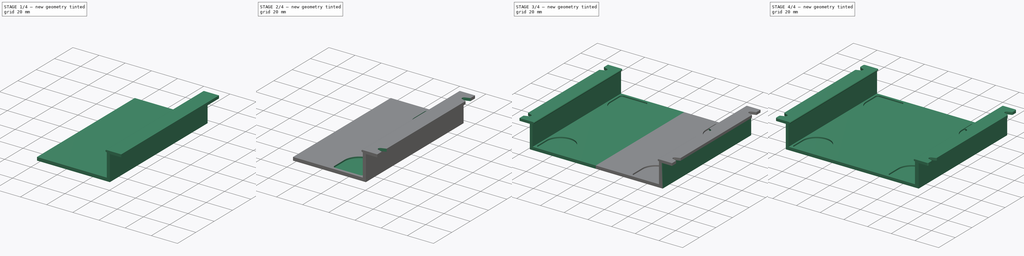
[diagram: build sequence overview — one tinted view per stage of 4, left to right]
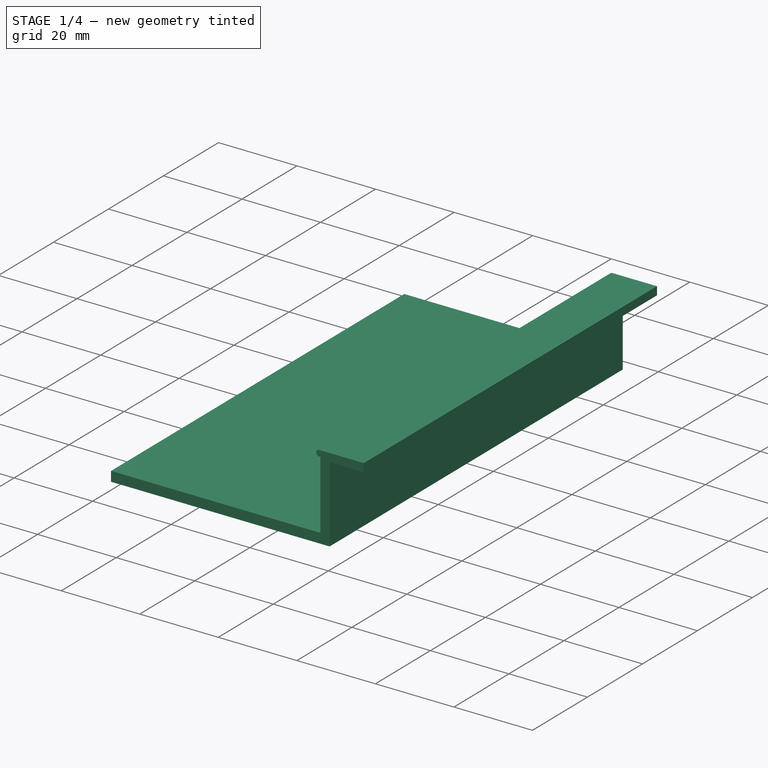
[diagram: stage 1 of 4 — iso view after this stage's code; geometry added in this stage tinted green]
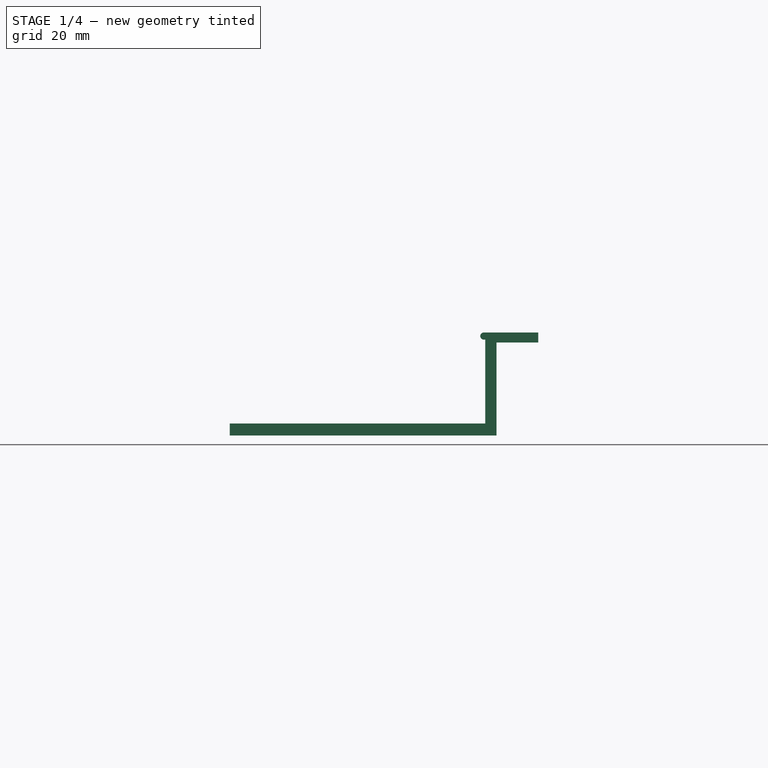
[diagram: stage 1 of 4 — front view after this stage's code; geometry added in this stage tinted green]
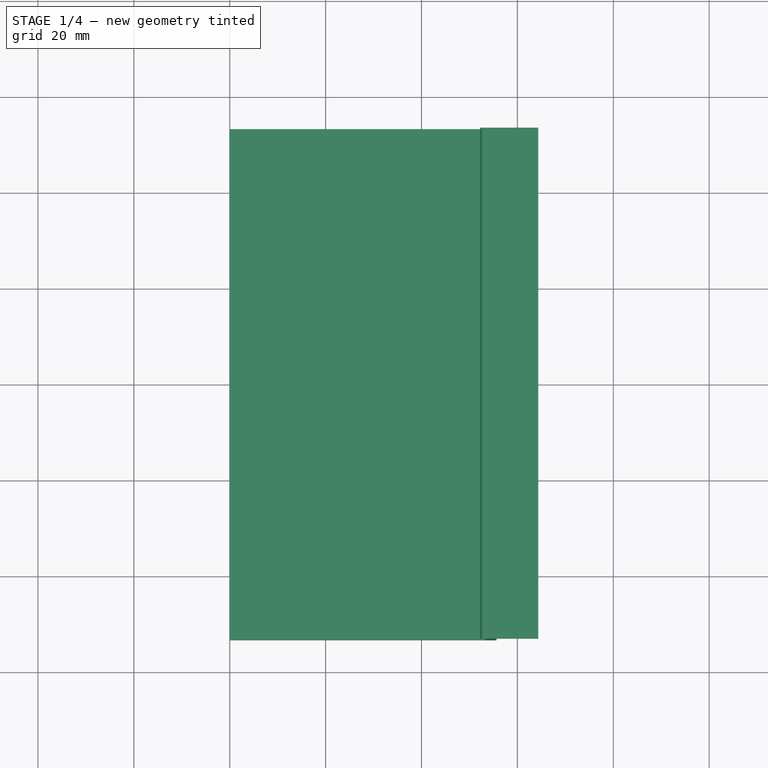
[diagram: stage 1 of 4 — top view after this stage's code; geometry added in this stage tinted green]
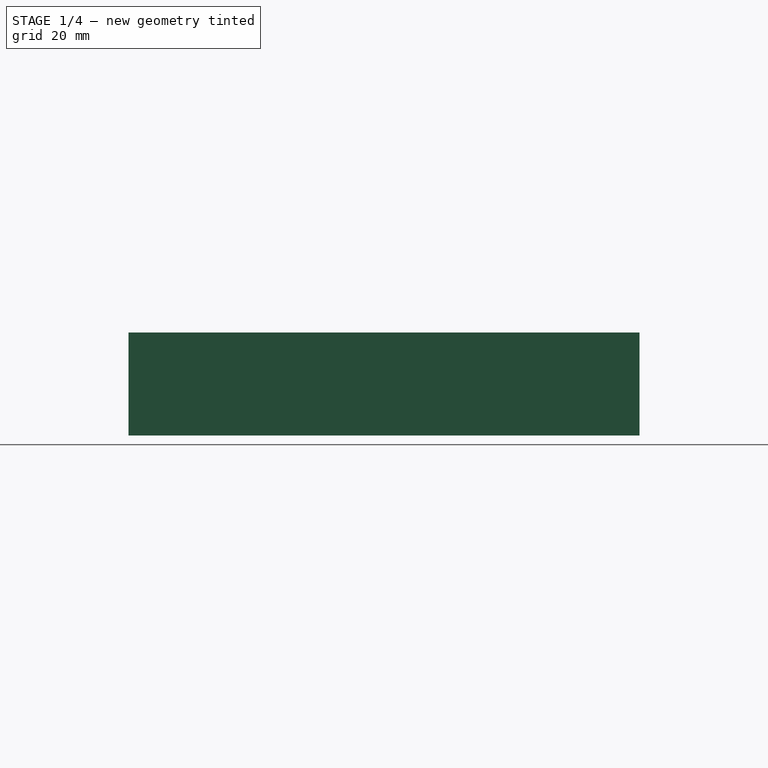
[diagram: stage 1 of 4 — right view after this stage's code; geometry added in this stage tinted green]
FCSTD DOCUMENT  (FreeCAD 0.21R33668 +26 (Git))
Label: eurorack_adapter_wo_switch
License: All rights reserved
LicenseURL: https://en.wikipedia.org/wiki/All_rights_reserved
objects: Sketcher::SketchObject×6, PartDesign::Pad×3, PartDesign::Pocket×3, PartDesign::Fillet×2, PartDesign::Mirrored×1, PartDesign::Plane×1, PartDesign::Body×1
note: 25 computed .brp shape members not serialized (recipe doc carries the construction recipe); baked Part::Feature solids carry a one-line shape summary decoded from their .brp

FEATURE [Sketcher::SketchObject] Sketch001
  FullyConstrained = true
  MapMode = 5
  Placement = pos=(0,0,0) rot=(1,0,0;1.5708rad)
  Support = -> [XZ_Plane001]
  sketch-geometry (8):
    g0: LineSegment StartX=64.35 StartY=0 StartZ=0 EndX=55.65 EndY=0 EndZ=0
    g1: LineSegment StartX=55.65 StartY=0 StartZ=0 EndX=55.65 EndY=-19.4 EndZ=0
    g2: LineSegment StartX=64.35 StartY=0 StartZ=0 EndX=64.35 EndY=2.1 EndZ=0
    g3: LineSegment StartX=64.35 StartY=2.1 StartZ=0 EndX=53.3 EndY=2.1 EndZ=0
    g4: LineSegment StartX=53.3 StartY=2.1 StartZ=0 EndX=53.3 EndY=-16.9 EndZ=0
    g5: LineSegment StartX=53.3 StartY=-16.9 StartZ=0 EndX=0 EndY=-16.9 EndZ=0
    g6: LineSegment StartX=55.65 StartY=-19.4 StartZ=0 EndX=0 EndY=-19.4 EndZ=0
    g7: LineSegment StartX=0 StartY=-16.9 StartZ=0 EndX=0 EndY=-19.4 EndZ=0
  constraints (29):
    c: Vertical(g1)
    c: Coincident(g3,g2)
    c: Horizontal(g3)
    c: Coincident(g4,g3)
    c: Vertical(g4)
    c: DistanceY(g0,g3) = 2.1
    c: DistanceX(g3,g0) = 2.35
    c: DistanceY(g4,g3) = 19
    c: Coincident(g5,g4)
    c: Horizontal(g5)
    c: Coincident(g6,g1)
    c: Horizontal(g6)
    c: DistanceY(g1,g4) = 2.5
    c: DistanceX(g5,g5) = 53.3
    c: Coincident(g7,g5)
    c: Coincident(g7,g6)
    c: Vertical(g7)
    c: DistanceX(g5,g2) = 64.35
    c: Horizontal(g0)
    c: Coincident(g0,g1)
    c: DistanceX(g0,g0) = 8.7
    c: PointOnObject(g5,g-2)
    c: Coincident(g2,g0)
    c: Vertical(g2)
    c: PointOnObject(g0,g-1)
    c: DistanceX(g6,g1) = 55.65
    c: DistanceY(g1,g1) = 19.4
    c: DistanceY(g1,g2) = 21.5
    c: DistanceY(g4,g0) = 16.9
FEATURE [PartDesign::Pad] Pad001  label="Main"
  Direction = (0,-1,-2e-16)
  Length = 106.6
  Length2 = 10
  Midplane = true
  Placement = pos=(0,0,0) rot=(1,0,0;1.5708rad)
  Profile = -> Sketch001
  ReferenceAxis = -> Sketch001 [N_Axis]
  Type = 0
FEATURE [Sketcher::SketchObject] Sketch002
  ExternalGeometry = -> [Pad001]
  FullyConstrained = true
  MapMode = 5
  Placement = pos=(0,0,0) rot=(1,0,0;1.5708rad)
  Support = -> [XZ_Plane001]
  sketch-geometry (4):
    g0: ArcOfCircle CenterX=53 CenterY=1.35 CenterZ=0 NormalX=0 NormalY=0 NormalZ=1 AngleXU=0 Radius=0.75 StartAngle=1.5708 EndAngle=4.71239
    g1: LineSegment StartX=53.3 StartY=2.1 StartZ=0 EndX=53 EndY=2.1 EndZ=0
    g2: LineSegment StartX=53.3 StartY=0.6 StartZ=0 EndX=53 EndY=0.6 EndZ=0
    g3: LineSegment StartX=53.3 StartY=2.1 StartZ=0 EndX=53.3 EndY=0.6 EndZ=0
  constraints (10):
    c: Coincident(g1,g-4)
    c: PointOnObject(g2,g-3)
    c: Horizontal(g2)
    c: Horizontal(g1)
    c: Diameter(g0) = 1.5
    c: Coincident(g3,g1)
    c: Coincident(g3,g2)
    c: Tangent(g0,g2) = 1.5708
    c: Tangent(g0,g1) = -1.5708
    c: DistanceX(g1,g1) = 0.3
FEATURE [PartDesign::Pad] Pad002  label="Z-holder"
  BaseFeature = -> Pad001
  Direction = (0,-1,-2e-16)
  Length = 106.6
  Length2 = 10
  Midplane = true
  Placement = pos=(0,0,0) rot=(1,0,0;1.5708rad)
  Profile = -> Sketch002
  ReferenceAxis = -> Sketch002 [N_Axis]
  Type = 0
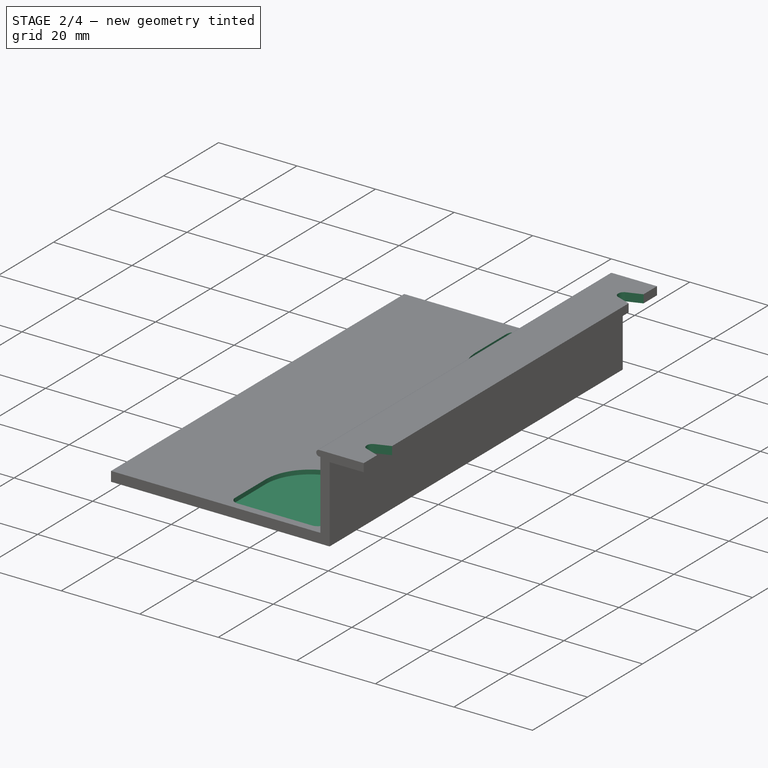
[diagram: stage 2 of 4 — iso view after this stage's code; geometry added in this stage tinted green]
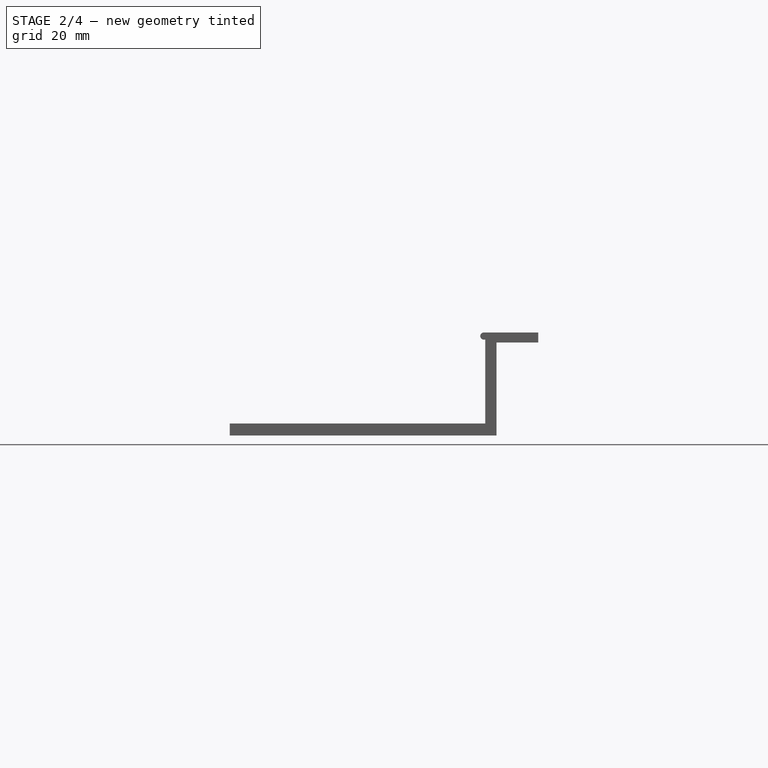
[diagram: stage 2 of 4 — front view after this stage's code; geometry added in this stage tinted green]
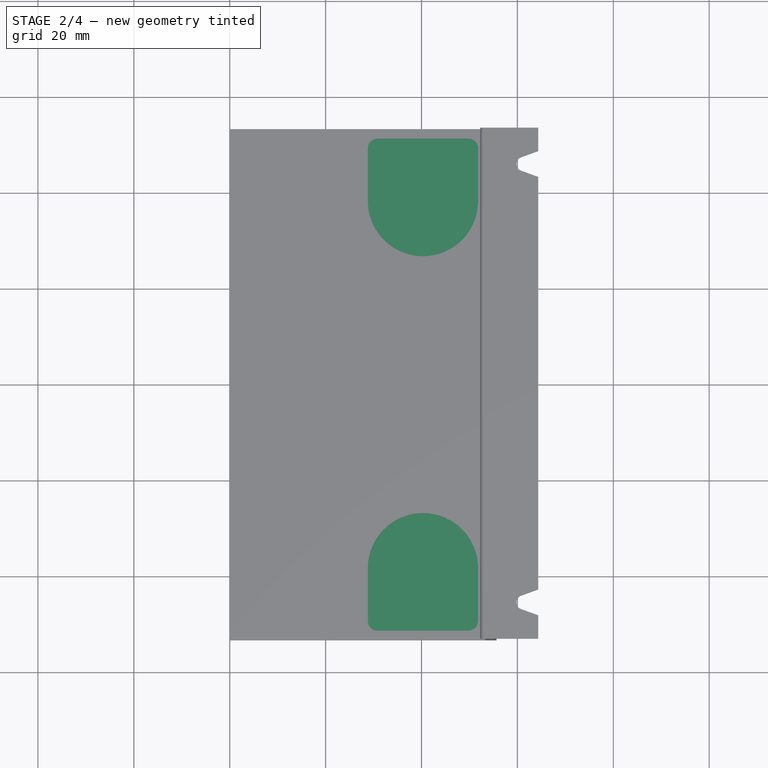
[diagram: stage 2 of 4 — top view after this stage's code; geometry added in this stage tinted green]
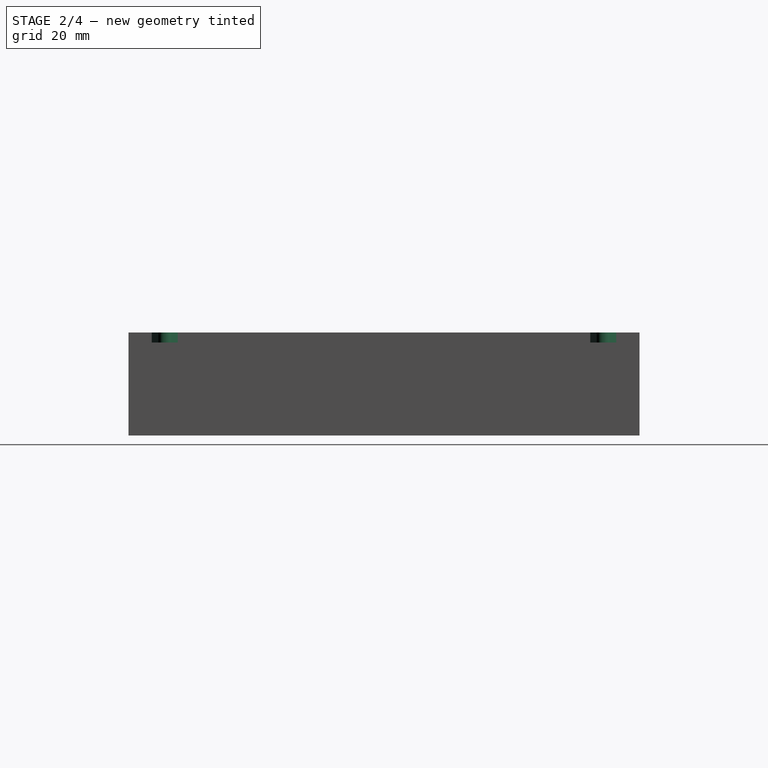
[diagram: stage 2 of 4 — right view after this stage's code; geometry added in this stage tinted green]
FEATURE [Sketcher::SketchObject] Sketch003
  ExternalGeometry = -> [Pad002]
  FullyConstrained = true
  MapMode = 5
  Support = -> [XY_Plane001]
  sketch-geometry (12):
    g0: ArcOfCircle CenterX=40.3 CenterY=38.3 CenterZ=0 NormalX=0 NormalY=0 NormalZ=1 AngleXU=0 Radius=11.5 StartAngle=3.14159 EndAngle=6.28319
    g1: LineSegment StartX=28.8 StartY=38.3 StartZ=0 EndX=28.8 EndY=49.3 EndZ=0
    g2: LineSegment StartX=51.8 StartY=38.3 StartZ=0 EndX=51.8 EndY=49.3 EndZ=0
    g3: LineSegment StartX=30.8 StartY=51.3 StartZ=0 EndX=49.8 EndY=51.3 EndZ=0
    g4: ArcOfCircle CenterX=40.3 CenterY=-38.3 CenterZ=0 NormalX=0 NormalY=0 NormalZ=1 AngleXU=0 Radius=11.5 StartAngle=0 EndAngle=3.14159
    g5: LineSegment StartX=28.8 StartY=-38.3 StartZ=0 EndX=28.8 EndY=-49.3 EndZ=0
    g6: LineSegment StartX=51.8 StartY=-38.3 StartZ=0 EndX=51.8 EndY=-49.3 EndZ=0
    g7: LineSegment StartX=30.8 StartY=-51.3 StartZ=0 EndX=49.8 EndY=-51.3 EndZ=0
    g8: ArcOfCircle CenterX=30.8 CenterY=-49.3 CenterZ=0 NormalX=0 NormalY=0 NormalZ=1 AngleXU=0 Radius=2 StartAngle=3.14159 EndAngle=4.71239
    g9: ArcOfCircle CenterX=49.8 CenterY=-49.3 CenterZ=0 NormalX=0 NormalY=0 NormalZ=1 AngleXU=0 Radius=2 StartAngle=4.71239 EndAngle=6.28319
    g10: ArcOfCircle CenterX=30.8 CenterY=49.3 CenterZ=0 NormalX=0 NormalY=0 NormalZ=1 AngleXU=0 Radius=2 StartAngle=1.5708 EndAngle=3.14159
    g11: ArcOfCircle CenterX=49.8 CenterY=49.3 CenterZ=0 NormalX=0 NormalY=0 NormalZ=1 AngleXU=0 Radius=2 StartAngle=1.7e-15 EndAngle=1.5708
  constraints (30):
    c: Diameter(g0) = 23
    c: Vertical(g2)
    c: Tangent(g0,g2) = -1.5708
    c: Tangent(g0,g1) = 1.5708
    c: Diameter(g4) = 23
    c: Vertical(g6)
    c: Vertical(g5)
    c: Tangent(g4,g6) = 1.5708
    c: Tangent(g4,g5) = -1.5708
    c: Horizontal(g7)
    c: Horizontal(g3)
    c: Equal(g1,g5)
    c: Vertical(g1)
    c: Vertical(g0,g4)
    c: Tangent(g7,g8) = -1.5708
    c: Tangent(g5,g8) = -1.5708
    c: Tangent(g6,g9) = 1.5708
    c: Tangent(g7,g9) = -1.5708
    c: Tangent(g3,g10) = 1.5708
    c: Tangent(g1,g10) = 1.5708
    c: Tangent(g2,g11) = -1.5708
    c: Tangent(g3,g11) = 1.5708
    c: DistanceY(g-4,g7) = 2
    c: Radius(g8) = 2
    c: Equal(g8,g9)
    c: Equal(g8,g10)
    c: Equal(g10,g11)
    c: DistanceY(g7,g4) = 13
    c: DistanceX(g6,g-4) = 1.5
    c: DistanceY(g3,g-3) = 2
FEATURE [PartDesign::Pocket] Pocket  label="Foot_pocket"
  AlongSketchNormal = false
  BaseFeature = -> Pad002
  Direction = (0,0,-1)
  Length = 18
  Length2 = 5
  Placement = pos=(0,0,0) rot=(1,0,0;1.5708rad)
  Profile = -> Sketch003
  ReferenceAxis = -> Sketch003 [N_Axis]
  Type = 0
FEATURE [Sketcher::SketchObject] Sketch004
  FullyConstrained = true
  MapMode = 5
  Support = -> [XY_Plane001]
  sketch-geometry (16):
    g0: LineSegment StartX=0 StartY=-53.3 StartZ=0 EndX=64.5 EndY=-53.3 EndZ=0
    g1: LineSegment StartX=64.5 StartY=-53.3 StartZ=0 EndX=64.5 EndY=0 EndZ=0
    g2: ArcOfCircle CenterX=61.2 CenterY=-45.8 CenterZ=0 NormalX=0 NormalY=0 NormalZ=1 AngleXU=0 Radius=1.4 StartAngle=3.14159 EndAngle=4.36332
    g3: ArcOfCircle CenterX=61.2 CenterY=-45.65 CenterZ=0 NormalX=0 NormalY=0 NormalZ=1 AngleXU=0 Radius=1.4 StartAngle=1.91986 EndAngle=3.14159
    g4: LineSegment StartX=64.5 StartY=0 StartZ=0 EndX=64.5 EndY=53.3 EndZ=0
    g5: LineSegment StartX=64.5 StartY=53.3 StartZ=0 EndX=0 EndY=53.3 EndZ=0
    g6: ArcOfCircle CenterX=61.2 CenterY=45.8 CenterZ=0 NormalX=0 NormalY=0 NormalZ=1 AngleXU=0 Radius=1.4 StartAngle=1.91986 EndAngle=3.14159
    g7: ArcOfCircle CenterX=61.2 CenterY=45.65 CenterZ=0 NormalX=0 NormalY=0 NormalZ=1 AngleXU=0 Radius=1.4 StartAngle=3.14159 EndAngle=4.36332
    g8: LineSegment StartX=59.8 StartY=-45.65 StartZ=0 EndX=59.8 EndY=-45.8 EndZ=0
    g9: LineSegment StartX=59.8 StartY=45.8 StartZ=0 EndX=59.8 EndY=45.65 EndZ=0
    g10: LineSegment StartX=60.7212 StartY=-44.3344 StartZ=0 EndX=64.5 EndY=-42.959 EndZ=0
    g11: LineSegment StartX=60.7212 StartY=-47.1156 StartZ=0 EndX=64.5 EndY=-48.491 EndZ=0
    g12: LineSegment StartX=60.7212 StartY=47.1156 StartZ=0 EndX=64.5 EndY=48.491 EndZ=0
    g13: LineSegment StartX=60.7212 StartY=44.3344 StartZ=0 EndX=64.5 EndY=42.959 EndZ=0
    g14: LineSegment StartX=64.5 StartY=-42.959 StartZ=0 EndX=64.5 EndY=-48.491 EndZ=0
    g15: LineSegment StartX=64.5 StartY=48.491 StartZ=0 EndX=64.5 EndY=42.959 EndZ=0
  constraints (45):
    c: PointOnObject(g0,g-2)
    c: Horizontal(g0)
    c: DistanceY(g0,g-1) = 53.3
    c: DistanceX(g0,g0) = 64.5
    c: Coincident(g1,g0)
    c: PointOnObject(g1,g-1)
    c: Vertical(g1)
    c: DistanceX(g2,g0) = 3.3
    c: DistanceY(g0,g2) = 7.5
    c: Vertical(g3,g2)
    c: DistanceY(g3,g1) = 45.65
    c: Diameter(g2) = 2.8
    c: Equal(g3,g2)
    c: Coincident(g4,g1)
    c: Vertical(g4)
    c: Coincident(g5,g4)
    c: PointOnObject(g5,g-2)
    c: Horizontal(g5)
    c: Equal(g4,g1)
    c: DistanceX(g6,g4) = 3.3
    c: DistanceY(g6,g4) = 7.5
    c: Vertical(g7,g6)
    c: DistanceY(g4,g7) = 45.65
    c: Equal(g7,g3)
    c: Equal(g6,g3)
    c: Tangent(g3,g8) = -1.5708
    c: Tangent(g2,g8) = -1.5708
    c: Tangent(g7,g9) = -1.5708
    c: Tangent(g6,g9) = -1.5708
    c: PointOnObject(g10,g1)
    c: PointOnObject(g11,g1)
    c: PointOnObject(g12,g4)
    c: PointOnObject(g13,g4)
    c: Coincident(g14,g10)
    c: Coincident(g14,g11)
    c: Equal(g10,g11)
    c: Angle(g11,g10) = 0.698132
    c: Equal(g12,g13)
    c: Coincident(g15,g12)
    c: Coincident(g15,g13)
    c: Angle(g13,g12) = 0.698132
    c: Tangent(g2,g11) = -1.5708
    c: Tangent(g3,g10) = 1.5708
    c: Tangent(g7,g13) = -1.5708
    c: Tangent(g6,g12) = 1.5708
FEATURE [PartDesign::Pocket] Pocket001  label="Hole"
  BaseFeature = -> Pocket
  Direction = (0,0,-1)
  Length = 5
  Length2 = 5
  Placement = pos=(0,0,0) rot=(1,0,0;1.5708rad)
  Profile = -> Sketch004
  ReferenceAxis = -> Sketch004 [N_Axis]
  Reversed = true
  Type = 0
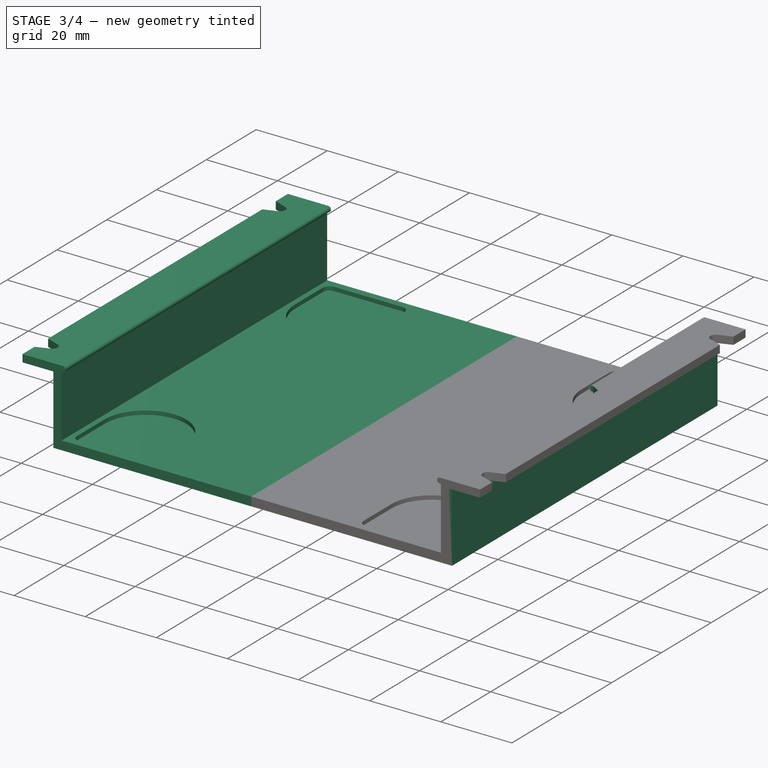
[diagram: stage 3 of 4 — iso view after this stage's code; geometry added in this stage tinted green]
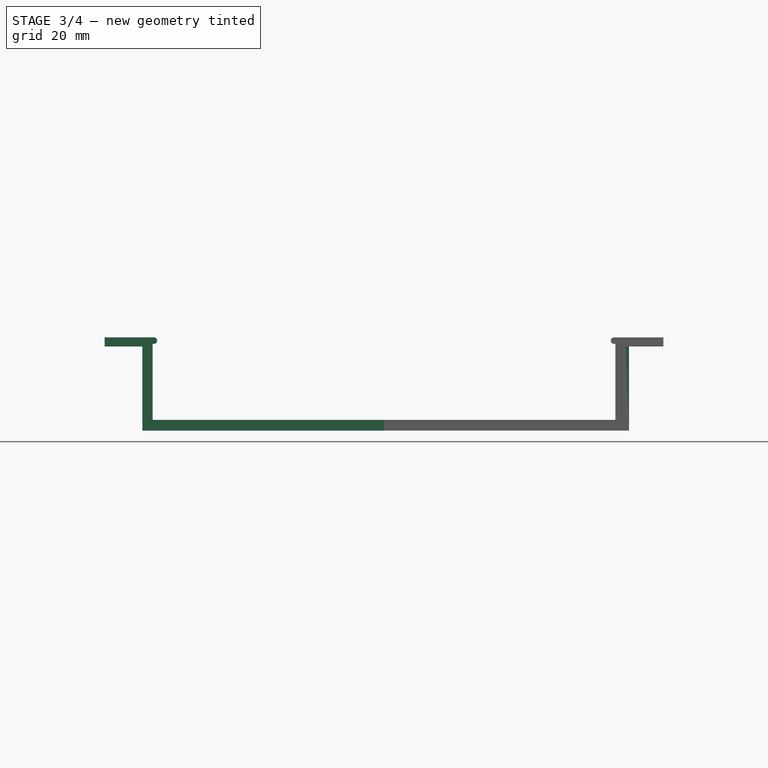
[diagram: stage 3 of 4 — front view after this stage's code; geometry added in this stage tinted green]
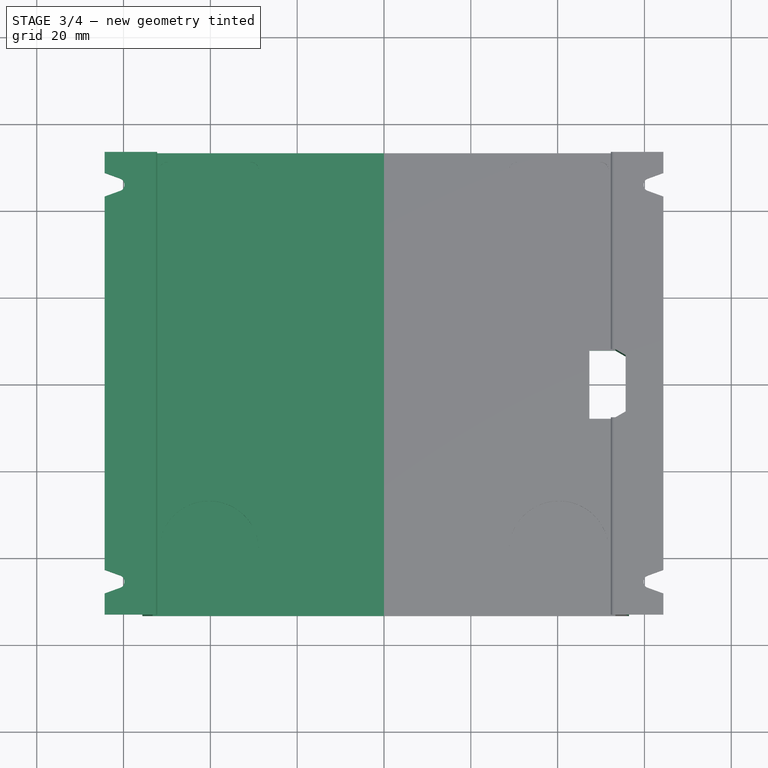
[diagram: stage 3 of 4 — top view after this stage's code; geometry added in this stage tinted green]
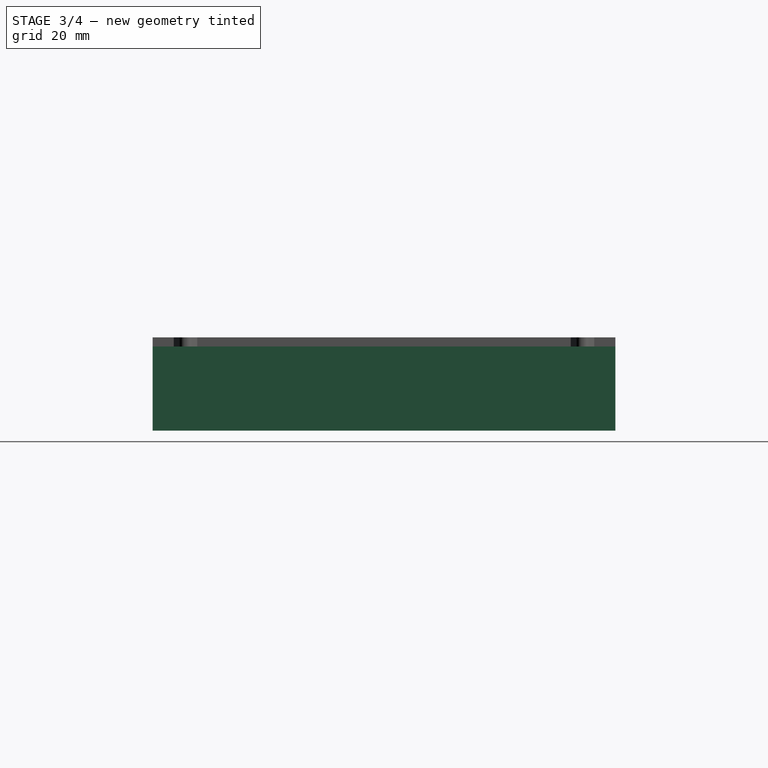
[diagram: stage 3 of 4 — right view after this stage's code; geometry added in this stage tinted green]
FEATURE [PartDesign::Mirrored] Mirrored
  BaseFeature = -> Pocket001
  MirrorPlane = -> YZ_Plane001
  Originals = -> [Pad001,Pad002,Pocket,Pocket001]
  Placement = pos=(0,0,0) rot=(1,0,0;1.5708rad)
FEATURE [PartDesign::Plane] DatumPlane
  AttachmentOffset = pos=(0,0,55.9) rot=(0,0,1;0rad)
  Length = 60
  MapMode = 5
  Placement = pos=(55.9,-1.24e-14,1.24e-14) rot=(0.57735,0.57735,0.57735;2.0944rad)
  ResizeMode = 0
  Support = -> [YZ_Plane001]
  Width = 60
FEATURE [Sketcher::SketchObject] Sketch005
  FullyConstrained = true
  MapMode = 5
  Support = -> [XY_Plane001]
  sketch-geometry (7):
    g0: LineSegment StartX=47.3 StartY=-7.85677 StartZ=0 EndX=47.3 EndY=7.85677 EndZ=0
    g1: LineSegment StartX=55.65 StartY=6.5 StartZ=0 EndX=55.65 EndY=-6.5 EndZ=0
    g2: GeomPoint X=47.3 Y=0 Z=0
    g3: LineSegment StartX=53.3 StartY=7.85677 StartZ=0 EndX=55.65 EndY=6.5 EndZ=0
    g4: LineSegment StartX=53.3 StartY=-7.85677 StartZ=0 EndX=55.65 EndY=-6.5 EndZ=0
    g5: LineSegment StartX=53.3 StartY=7.85677 StartZ=0 EndX=47.3 EndY=7.85677 EndZ=0
    g6: LineSegment StartX=47.3 StartY=-7.85677 StartZ=0 EndX=53.3 EndY=-7.85677 EndZ=0
  constraints (19):
    c: Vertical(g0)
    c: Vertical(g1)
    c: PointOnObject(g2,g-1)
    c: Angle(g4,g0) = 1.0472
    c: Angle(g0,g3) = 1.0472
    c: Coincident(g1,g3)
    c: Coincident(g1,g4)
    c: DistanceY(g1,g1) = 13
    c: Horizontal(g5)
    c: DistanceX(g-1,g5) = 53.3
    c: Coincident(g3,g5)
    c: Coincident(g0,g5)
    c: Horizontal(g6)
    c: Vertical(g3,g6)
    c: Coincident(g4,g6)
    c: Coincident(g0,g6)
    c: Symmetric(g0,g0,g2)
    c: DistanceX(g-1,g1) = 55.65
    c: DistanceX(g5,g5) = 6
FEATURE [Sketcher::SketchObject] Sketch
  FullyConstrained = true
  MapMode = 5
  Placement = pos=(0,0,0) rot=(1,0,0;1.5708rad)
  Support = -> [XZ_Plane001]
  sketch-geometry (4):
    g0: LineSegment StartX=55.65 StartY=-19.4 StartZ=0 EndX=56.45 EndY=-19.4 EndZ=0
    g1: LineSegment StartX=56.45 StartY=-19.4 StartZ=0 EndX=56.45 EndY=0 EndZ=0
    g2: LineSegment StartX=56.45 StartY=0 StartZ=0 EndX=55.65 EndY=0 EndZ=0
    g3: LineSegment StartX=55.65 StartY=0 StartZ=0 EndX=55.65 EndY=-19.4 EndZ=0
  constraints (12):
    c: Coincident(g0,g1)
    c: Coincident(g1,g2)
    c: Coincident(g2,g3)
    c: Coincident(g3,g0)
    c: Horizontal(g0)
    c: Horizontal(g2)
    c: Vertical(g1)
    c: Vertical(g3)
    c: DistanceX(g-1,g2) = 55.65
    c: DistanceY(g0,g-1) = 19.4
    c: PointOnObject(g2,g-1)
    c: DistanceX(g0,g0) = 0.8
FEATURE [PartDesign::Pad] Pad
  BaseFeature = -> Mirrored
  Direction = (0,-1,-2e-16)
  Length = 106.6
  Length2 = 10
  Midplane = true
  Placement = pos=(0,0,0) rot=(1,0,0;1.5708rad)
  Profile = -> Sketch
  ReferenceAxis = -> Sketch [N_Axis]
  Type = 0
FEATURE [PartDesign::Pocket] Pocket004  label="PCB pocket"
  BaseFeature = -> Pad
  Direction = (0,0,-1)
  Length = 50
  Length2 = 5
  Midplane = true
  Placement = pos=(0,0,0) rot=(1,0,0;1.5708rad)
  Profile = -> Sketch005
  ReferenceAxis = -> Sketch005 [N_Axis]
  Type = 1
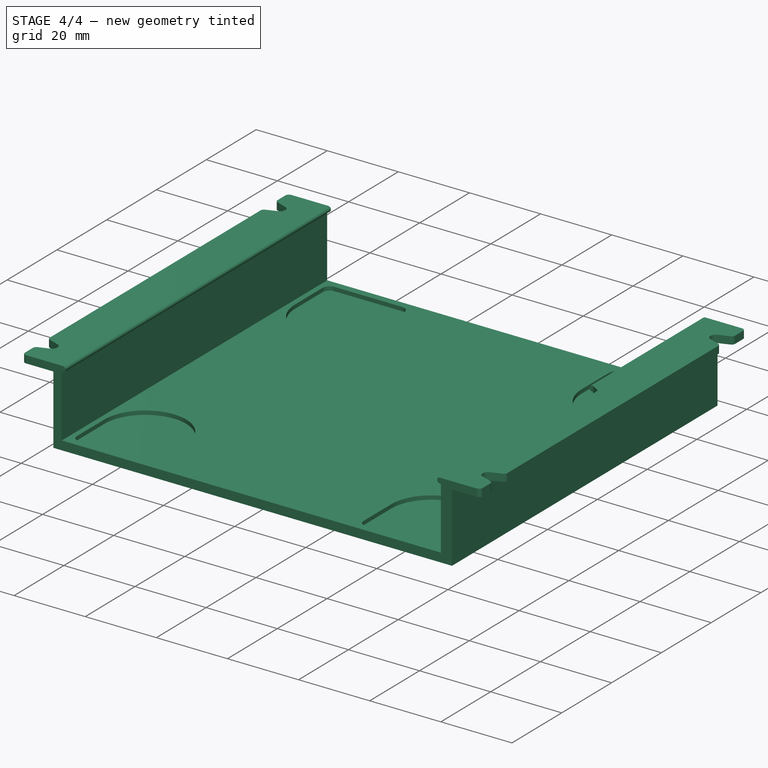
[diagram: stage 4 of 4 — iso view after this stage's code; geometry added in this stage tinted green]
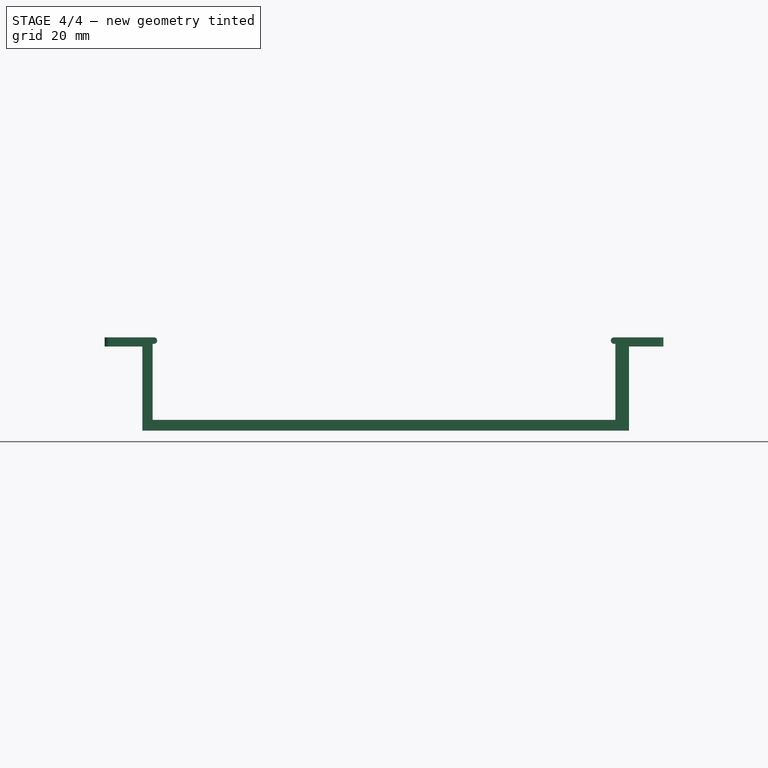
[diagram: stage 4 of 4 — front view after this stage's code; geometry added in this stage tinted green]
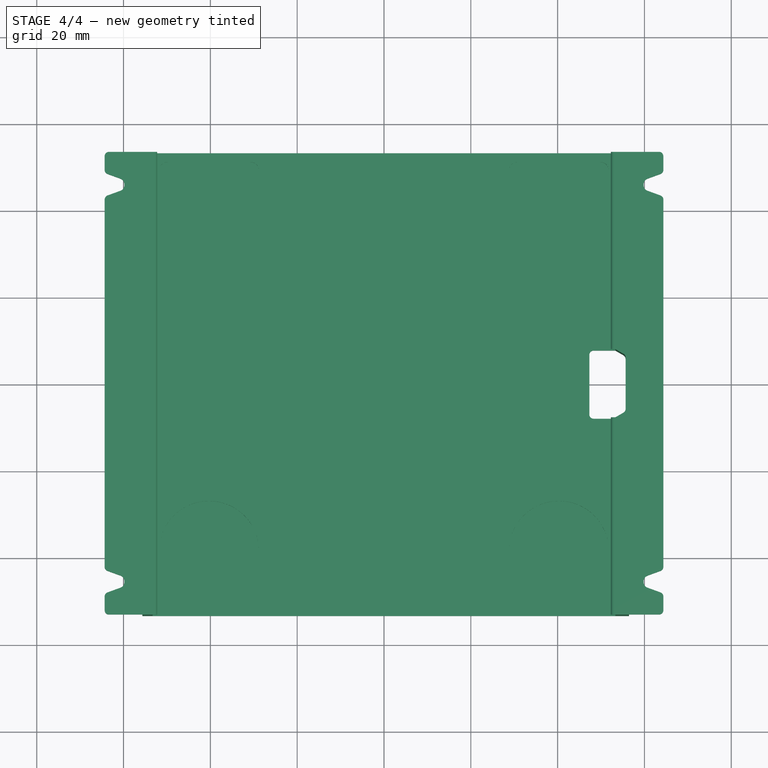
[diagram: stage 4 of 4 — top view after this stage's code; geometry added in this stage tinted green]
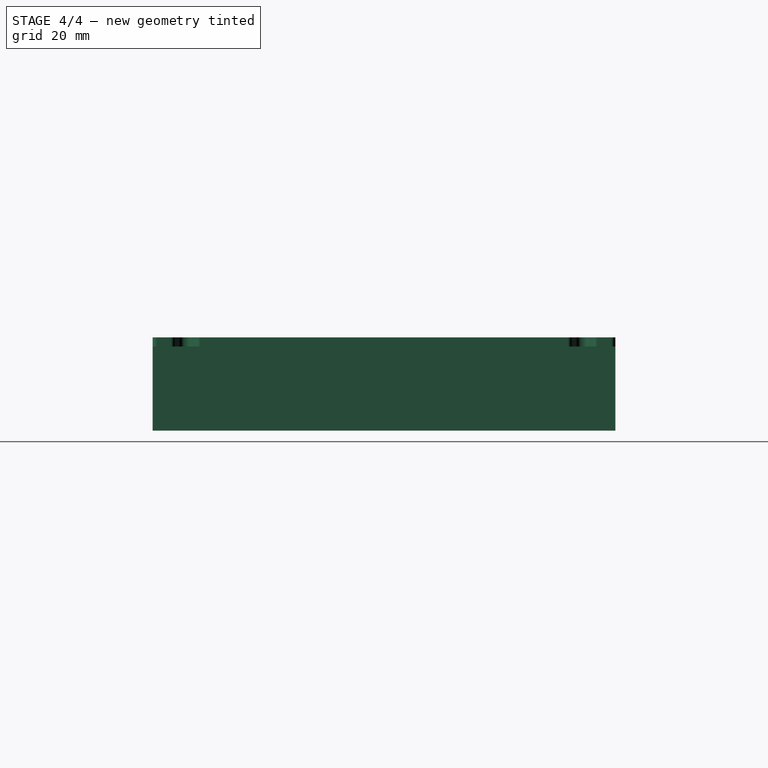
[diagram: stage 4 of 4 — right view after this stage's code; geometry added in this stage tinted green]
FEATURE [PartDesign::Fillet] Fillet
  Base = -> Pocket004 [Edge101,Edge236,Edge197,Edge237,Edge189,Edge92,Edge36,Edge66,Edge55,Edge43,Edge42,Edge54]
  BaseFeature = -> Pocket004
  Placement = pos=(0,0,0) rot=(1,0,0;1.5708rad)
  Radius = 1
  SupportTransform = false
  UseAllEdges = false
FEATURE [PartDesign::Fillet] Fillet001
  Base = -> Fillet [Edge230,Edge236,Edge233,Edge234]
  BaseFeature = -> Fillet
  Placement = pos=(0,0,0) rot=(1,0,0;1.5708rad)
  Radius = 1
  SupportTransform = false
  UseAllEdges = false
FEATURE [PartDesign::Body] Body001  label="Eurorack_case"
  Group = -> [Sketch001,Pad001,Sketch002,Pad002,Sketch003,Pocket,Sketch004,Pocket001,DatumPlane,Mirrored,Pad,Sketch,Sketch005,Pocket004,Fillet,Fillet001]
  Origin = -> Origin001
  Tip = -> Fillet001
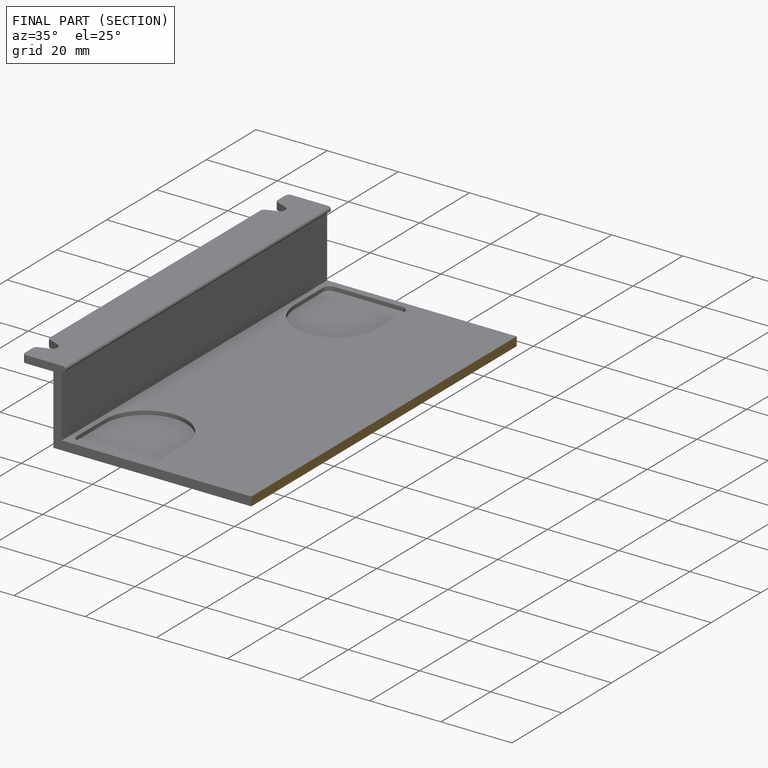
[diagram: finished part — half-section view (interior)]
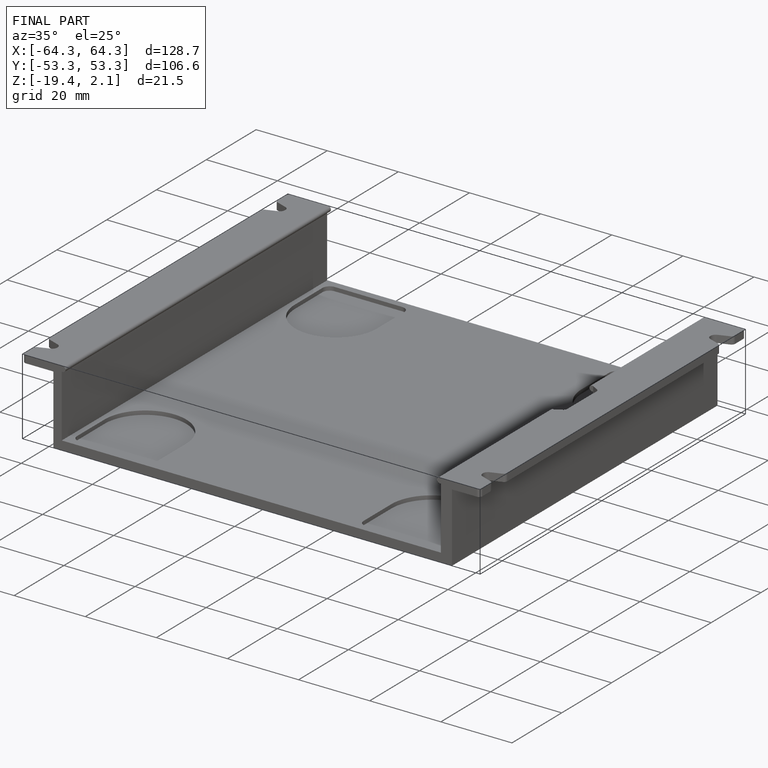
[diagram: finished part — iso view with bounding-box wireframe]
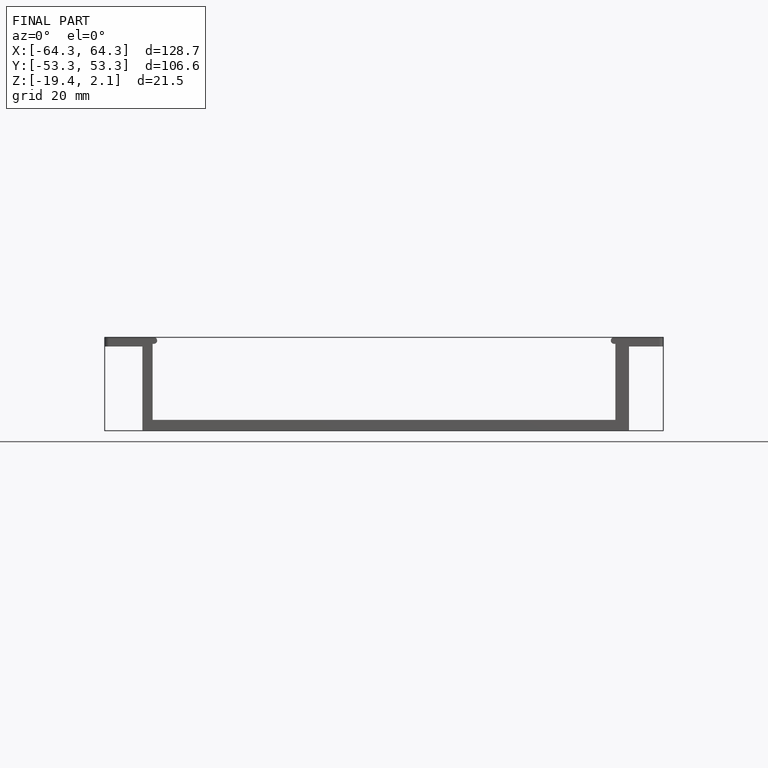
[diagram: finished part — front view with bounding-box wireframe]
